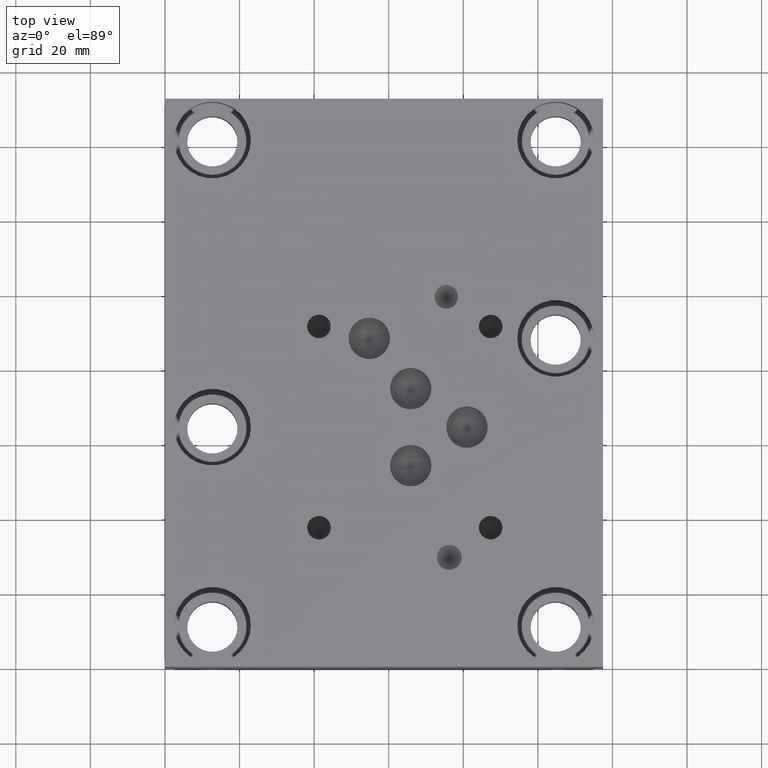
[diagram: clean part render]
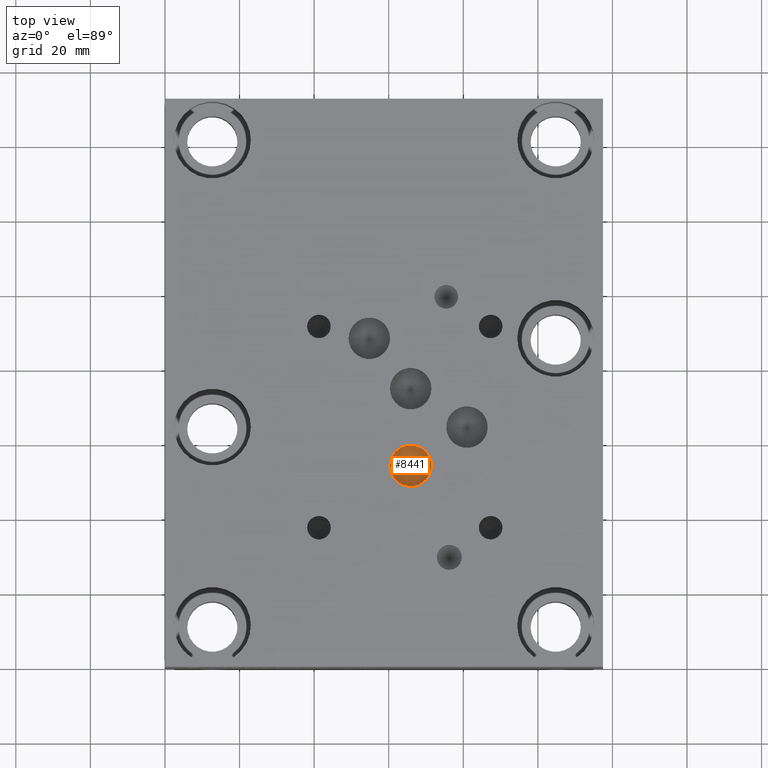
[diagram: same view with one face highlighted and labeled with its STEP entity id]
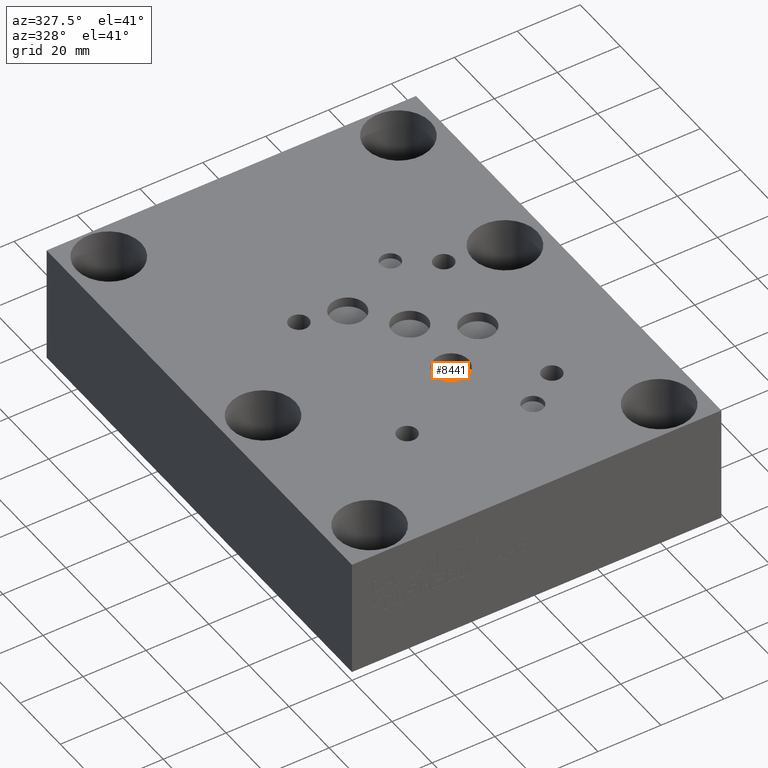
[diagram: same view with one face highlighted and labeled with its STEP entity id]
A machine part, top view. The second image highlights one B-rep face of the part: STEP entity #8441.
A second angle (auxiliary view) of the same face is appended — the face is thin or edge-on in the first view.
In plain terms, the highlighted conical surface has half-angle 60 deg.
Its self-contained STEP definition (entity closure, byte-faithful):
#140=CIRCLE('',#8889,5.5626);
#177=CONICAL_SURFACE('',#8888,2.7813,1.0471975511966);
#971=FACE_OUTER_BOUND('',#1475,.T.);
#1475=EDGE_LOOP('',(#7301,#7302,#7303));
#2347=LINE('',#14291,#3195);
#3195=VECTOR('',#10578,2.7813);
#3955=VERTEX_POINT('',#14288);
#3956=VERTEX_POINT('',#14290);
#5083=EDGE_CURVE('',#3955,#3955,#140,.T.);
#5084=EDGE_CURVE('',#3955,#3956,#2347,.T.);
#7301=ORIENTED_EDGE('',*,*,#5083,.T.);
#7302=ORIENTED_EDGE('',*,*,#5084,.T.);
#7303=ORIENTED_EDGE('',*,*,#5084,.F.);
#8441=ADVANCED_FACE('',(#971),#177,.F.);
#8888=AXIS2_PLACEMENT_3D('',#14287,#10574,#10575);
#8889=AXIS2_PLACEMENT_3D('',#14289,#10576,#10577);
#10574=DIRECTION('center_axis',(0.,0.,1.));
#10575=DIRECTION('ref_axis',(1.,0.,0.));
#10576=DIRECTION('center_axis',(0.,0.,1.));
#10577=DIRECTION('ref_axis',(1.,0.,0.));
#10578=DIRECTION('',(0.866025403784439,1.06057523872491E-16,-0.5));
#14287=CARTESIAN_POINT('Origin',(65.89268,53.95722,33.2826456963029));
#14288=CARTESIAN_POINT('',(60.33008,53.95722,34.88843));
#14289=CARTESIAN_POINT('Origin',(65.89268,53.95722,34.88843));
#14290=CARTESIAN_POINT('',(65.89268,53.95722,31.6768613926058));
#14291=CARTESIAN_POINT('',(63.11138,53.95722,33.2826456963029));